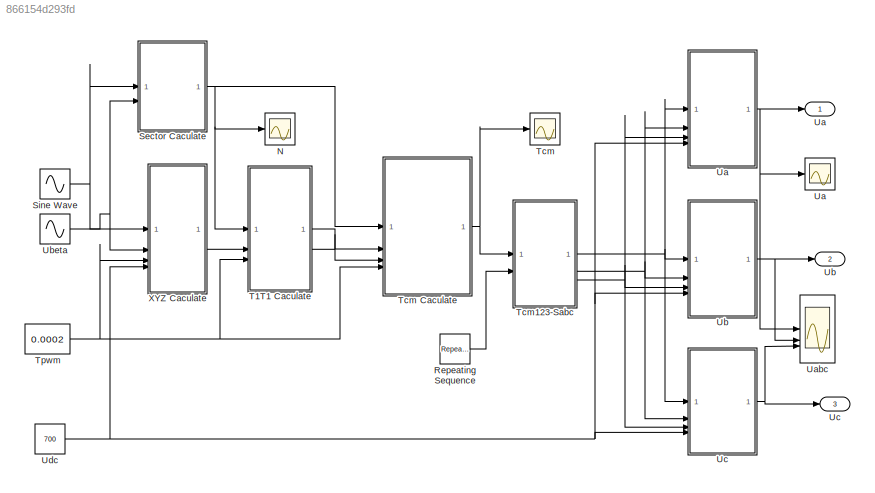
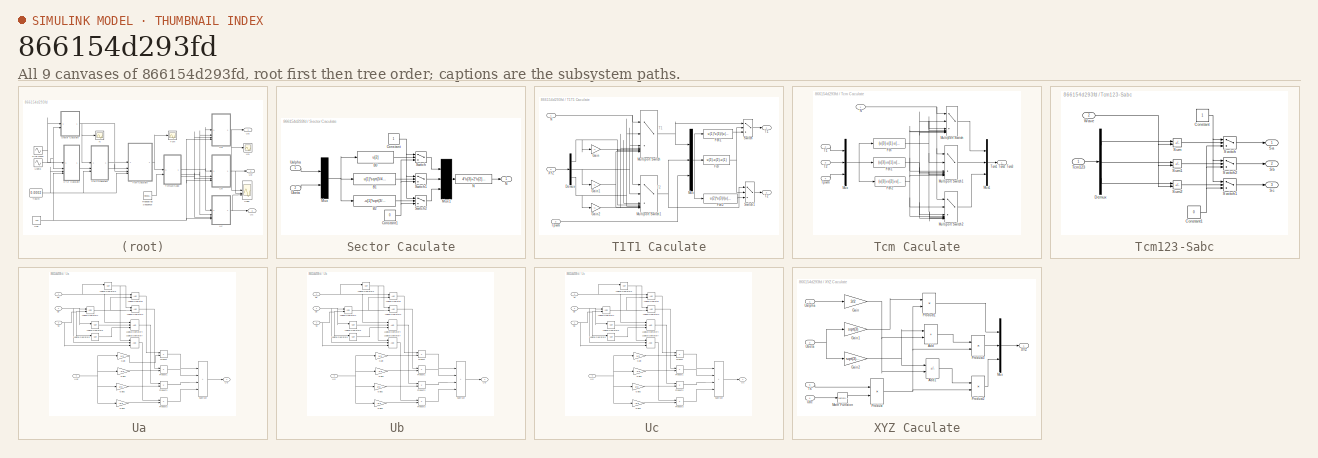
[diagram: thumbnail index - all 9 canvases of the model, root first then tree order]
MODEL slx_866154d293fd
KIND model
CONFIG AbsTol = auto
CONFIG EnableMultiTasking = on
CONFIG FixedStep = 10e-6
CONFIG MaxStep = 0.00001
CONFIG MinStep = auto
CONFIG RelTol = 1e-3
CONFIG SampleTimeConstraint = Unconstrained
CONFIG SolverName = ode23tb
CONFIG StartTime = 0.0
CONFIG StopTime = 0.05
BLOCK [Scope] N
  Floating = off
  NumInputPorts = 1
  ScopeSpecificationString = C++SS(StrPVP('Location','[68, 195, 986, 649]'),StrPVP('Open','off'),MxPVP('AxesTitles',54,'struct(''axes1'',''%<SignalLabel>'')'),MxPVP('ScopeGraphics',57,'struct(''FigureColor'',''[0.501960784313725 0.501960784313725 0.501960784313725]'',''AxesColor'',''[0 0 0]'',''AxesTickColor'',''[1 1 1]'',''LineColors'',''[1 1 0;1 0 1;0 1 1;1 0 0;0 1 0;0 0 1]'',''LineStyles'',''-|-|-|-|-|-'',''LineWidths'',''...<+404ch>
BLOCK [Reference] Repeating Sequence  REF=simulink/Sources/Repeating
Sequence
  SourceBlock = simulink/Sources/Repeating\nSequence
  SourceType = Repeating table
BLOCK [SubSystem] Sector Caculate
BLOCK [Fcn] Sector Caculate/B0
  Expr = u[2]
BLOCK [Fcn] Sector Caculate/B1
  Expr = u[1]*sqrt(3/4)-0.5*u[2]
BLOCK [Fcn] Sector Caculate/B2
  Expr = -u[1]*sqrt(3/4)-u[2]*0.5
BLOCK [Constant] Sector Caculate/Constant
BLOCK [Constant] Sector Caculate/Constant1
  Value = 0
BLOCK [Mux] Sector Caculate/Mux
  Inputs = 2
BLOCK [Mux] Sector Caculate/Mux1
  Inputs = 3
BLOCK [Fcn] Sector Caculate/N
  Expr = 4*u[3]+2*u[2]+u[1]
BLOCK [Outport] Sector Caculate/N 
BLOCK [Switch] Sector Caculate/Switch
  InputSameDT = off
  SaturateOnIntegerOverflow = off
BLOCK [Switch] Sector Caculate/Switch1
  InputSameDT = off
  SaturateOnIntegerOverflow = off
BLOCK [Switch] Sector Caculate/Switch2
  InputSameDT = off
  SaturateOnIntegerOverflow = off
BLOCK [Inport] Sector Caculate/Ualpha
BLOCK [Inport] Sector Caculate/Ubeta
  Port = 2
BLOCK [Sin] Sine Wave
  Amplitude = 200
  Frequency = 100*pi
  Phase = pi/2
  SampleTime = 0
BLOCK [SubSystem] T1T1 Caculate
BLOCK [Demux] T1T1 Caculate/Demux
  Outputs = 3
BLOCK [Fcn] T1T1 Caculate/Fcn
  Expr = u(3)-u(2)-u(1)
BLOCK [Fcn] T1T1 Caculate/Fcn1
  Expr = u(1)*u(3)/(u(1)+u(2))
BLOCK [Fcn] T1T1 Caculate/Fcn2
  Expr = u(2)*u(3)/(u(1)+u(2))
BLOCK [Gain] T1T1 Caculate/Gain
  Gain = -1
BLOCK [Gain] T1T1 Caculate/Gain1
  Gain = -1
BLOCK [Gain] T1T1 Caculate/Gain2
  Gain = -1
BLOCK [MultiPortSwitch] T1T1 Caculate/Multiport Switch
  InputSameDT = off
  Inputs = 6
  SaturateOnIntegerOverflow = off
BLOCK [MultiPortSwitch] T1T1 Caculate/Multiport Switch1
  InputSameDT = off
  Inputs = 6
  SaturateOnIntegerOverflow = off
BLOCK [Mux] T1T1 Caculate/Mux
  DisplayOption = bar
  Inputs = 3
BLOCK [Inport] T1T1 Caculate/N
BLOCK [Switch] T1T1 Caculate/Switch
  InputSameDT = off
  SaturateOnIntegerOverflow = off
BLOCK [Switch] T1T1 Caculate/Switch1
  Criteria = u2 > Threshold
  InputSameDT = off
  SaturateOnIntegerOverflow = off
BLOCK [Outport] T1T1 Caculate/T1
BLOCK [Outport] T1T1 Caculate/T2
  Port = 2
BLOCK [Inport] T1T1 Caculate/Tpwm
  Port = 3
BLOCK [Inport] T1T1 Caculate/XYZ
  Port = 2
BLOCK [Scope] Tcm
  Floating = off
  NumInputPorts = 1
  ScopeSpecificationString = Simulink.scopes.TimeScopeBlockCfg('CurrentConfiguration', extmgr.ConfigurationSet(extmgr.Configuration('Core','General UI',true),extmgr.Configuration('Core','Source UI',true),extmgr.Configuration('Sources','WiredSimulink',true,'DataLogging',true,'DataLoggingVariableName','Tcm','DataLoggingSaveFormat','StructureWithTime','SampleTime','0','DataLoggingDecimation','1','DataLoggingDecimateData',true),e...<+1630ch>
BLOCK [SubSystem] Tcm Caculate
BLOCK [Fcn] Tcm Caculate/Fcn
  Expr = (u[3]-u[1]-u[2])/4
BLOCK [Fcn] Tcm Caculate/Fcn1
  Expr = (u[3]+u[1]-u[2])/4
BLOCK [Fcn] Tcm Caculate/Fcn2
  Expr = (u[3]+u[2]+u[1])/4
BLOCK [MultiPortSwitch] Tcm Caculate/Multiport Switch
  InputSameDT = off
  Inputs = 6
  SaturateOnIntegerOverflow = off
BLOCK [MultiPortSwitch] Tcm Caculate/Multiport Switch1
  InputSameDT = off
  Inputs = 6
  SaturateOnIntegerOverflow = off
BLOCK [MultiPortSwitch] Tcm Caculate/Multiport Switch2
  InputSameDT = off
  Inputs = 6
  SaturateOnIntegerOverflow = off
BLOCK [Mux] Tcm Caculate/Mux
  DisplayOption = bar
  Inputs = 3
BLOCK [Mux] Tcm Caculate/Mux1
  DisplayOption = bar
  Inputs = 3
BLOCK [Inport] Tcm Caculate/N
BLOCK [Inport] Tcm Caculate/T1
  Port = 2
BLOCK [Inport] Tcm Caculate/T2
  Port = 3
BLOCK [Outport] Tcm Caculate/Tcm1 Tcm2 Tcm3
BLOCK [Inport] Tcm Caculate/Tpwm
  Port = 4
BLOCK [SubSystem] Tcm123-Sabc
BLOCK [Constant] Tcm123-Sabc/Constant
BLOCK [Constant] Tcm123-Sabc/Constant1
  Value = 0
BLOCK [Demux] Tcm123-Sabc/Demux
  Outputs = 3
BLOCK [Outport] Tcm123-Sabc/Sa
BLOCK [Outport] Tcm123-Sabc/Sb
  Port = 2
BLOCK [Outport] Tcm123-Sabc/Sc
  Port = 3
BLOCK [Sum] Tcm123-Sabc/Sum
  IconShape = rectangular
  Inputs = -+
  SaturateOnIntegerOverflow = on
BLOCK [Sum] Tcm123-Sabc/Sum1
  IconShape = rectangular
  Inputs = -+
  SaturateOnIntegerOverflow = on
BLOCK [Sum] Tcm123-Sabc/Sum2
  IconShape = rectangular
  Inputs = -+
  SaturateOnIntegerOverflow = on
BLOCK [Switch] Tcm123-Sabc/Switch
  InputSameDT = off
BLOCK [Switch] Tcm123-Sabc/Switch1
  InputSameDT = off
BLOCK [Switch] Tcm123-Sabc/Switch2
  InputSameDT = off
BLOCK [Inport] Tcm123-Sabc/Tcm123
BLOCK [Inport] Tcm123-Sabc/Wave
  Port = 2
BLOCK [Constant] Tpwm
  Value = 0.0002
BLOCK [Outport] Ua
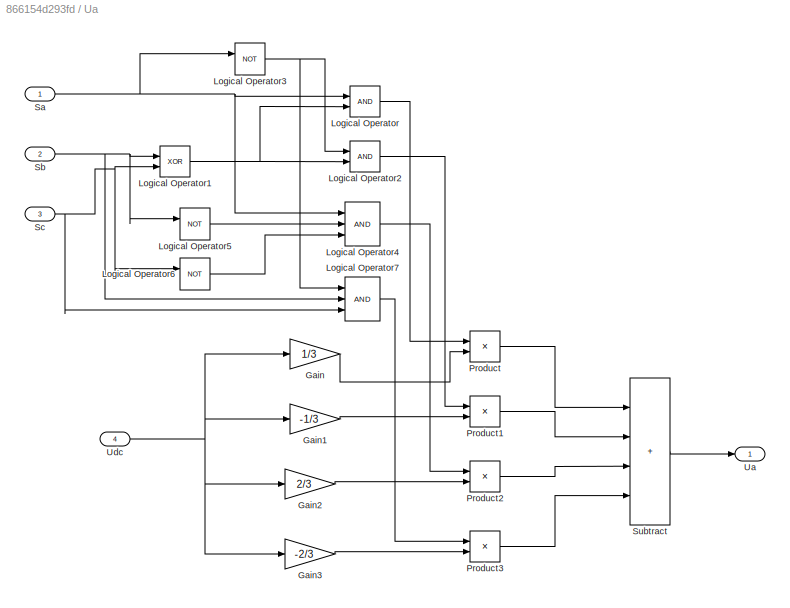
BLOCK [SubSystem] Ua 
BLOCK [Scope] Ua  
  Floating = off
  NumInputPorts = 1
  ScopeSpecificationString = C++SS(StrPVP('Location','[11, 60, 1035, 731]'),StrPVP('Open','off'),MxPVP('AxesTitles',54,'struct(''axes1'',''%<SignalLabel>'')'),MxPVP('ScopeGraphics',57,'struct(''FigureColor'',''[0.5 0.5 0.5]'',''AxesColor'',''[0 0 0]'',''AxesTickColor'',''[1 1 1]'',''LineColors'',''[1 1 0;1 0 1;0 1 1;1 0 0;0 1 0;0 0 1]'',''LineStyles'',''-|-|-|-|-|-'',''LineWidths'',''[0.5 0.5 0.5 0.5 0.5 0.5]'',''MarkerStyles...<+363ch>
BLOCK [Gain] Ua /Gain
  Gain = 1/3
BLOCK [Gain] Ua /Gain1
  Gain = -1/3
BLOCK [Gain] Ua /Gain2
  Gain = 2/3
BLOCK [Gain] Ua /Gain3
  Gain = -2/3
BLOCK [Logic] Ua /Logical Operator
  AllPortsSameDT = off
  OutDataTypeStr = boolean
BLOCK [Logic] Ua /Logical Operator1
  AllPortsSameDT = off
  Operator = XOR
  OutDataTypeStr = boolean
BLOCK [Logic] Ua /Logical Operator2
  AllPortsSameDT = off
  OutDataTypeStr = boolean
BLOCK [Logic] Ua /Logical Operator3
  AllPortsSameDT = off
  Operator = NOT
  OutDataTypeStr = boolean
BLOCK [Logic] Ua /Logical Operator4
  AllPortsSameDT = off
  Inputs = 3
  OutDataTypeStr = boolean
BLOCK [Logic] Ua /Logical Operator5
  AllPortsSameDT = off
  Operator = NOT
  OutDataTypeStr = boolean
BLOCK [Logic] Ua /Logical Operator6
  AllPortsSameDT = off
  Operator = NOT
  OutDataTypeStr = boolean
BLOCK [Logic] Ua /Logical Operator7
  AllPortsSameDT = off
  Inputs = 3
  OutDataTypeStr = boolean
BLOCK [Product] Ua /Product
  RndMeth = Zero
BLOCK [Product] Ua /Product1
  RndMeth = Zero
BLOCK [Product] Ua /Product2
  RndMeth = Zero
BLOCK [Product] Ua /Product3
  RndMeth = Zero
BLOCK [Inport] Ua /Sa
BLOCK [Inport] Ua /Sb
  Port = 2
BLOCK [Inport] Ua /Sc
  Port = 3
BLOCK [Sum] Ua /Subtract
  IconShape = rectangular
  Inputs = ++++
BLOCK [Outport] Ua /Ua
BLOCK [Inport] Ua /Udc
  Port = 4
BLOCK [Scope] Uabc
  Floating = off
  NumInputPorts = 3
  ScopeSpecificationString = Simulink.scopes.TimeScopeBlockCfg('CurrentConfiguration', extmgr.ConfigurationSet(extmgr.Configuration('Core','General UI',true),extmgr.Configuration('Core','Source UI',true),extmgr.Configuration('Sources','WiredSimulink',true,'DataLoggingVariableName','ScopeData7','DataLoggingSaveFormat','Structure','DataLoggingDecimation','1','DataLoggingDecimateData',true),extmgr.Configuration('Visuals','Time D...<+3243ch>
BLOCK [Outport] Ub
  Port = 2
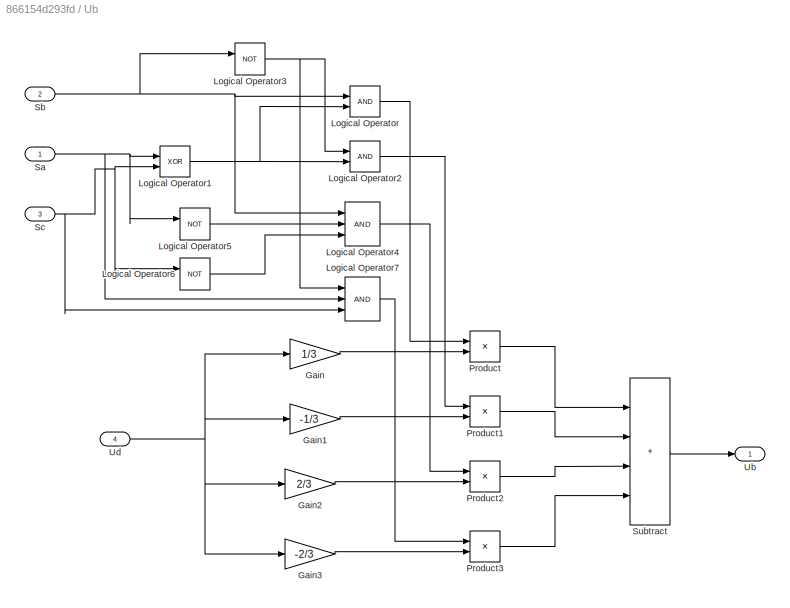
BLOCK [SubSystem] Ub 
BLOCK [Gain] Ub /Gain
  Gain = 1/3
BLOCK [Gain] Ub /Gain1
  Gain = -1/3
BLOCK [Gain] Ub /Gain2
  Gain = 2/3
BLOCK [Gain] Ub /Gain3
  Gain = -2/3
BLOCK [Logic] Ub /Logical Operator
  AllPortsSameDT = off
  OutDataTypeStr = boolean
BLOCK [Logic] Ub /Logical Operator1
  AllPortsSameDT = off
  Operator = XOR
  OutDataTypeStr = boolean
BLOCK [Logic] Ub /Logical Operator2
  AllPortsSameDT = off
  OutDataTypeStr = boolean
BLOCK [Logic] Ub /Logical Operator3
  AllPortsSameDT = off
  Operator = NOT
  OutDataTypeStr = boolean
BLOCK [Logic] Ub /Logical Operator4
  AllPortsSameDT = off
  Inputs = 3
  OutDataTypeStr = boolean
BLOCK [Logic] Ub /Logical Operator5
  AllPortsSameDT = off
  Operator = NOT
  OutDataTypeStr = boolean
BLOCK [Logic] Ub /Logical Operator6
  AllPortsSameDT = off
  Operator = NOT
  OutDataTypeStr = boolean
BLOCK [Logic] Ub /Logical Operator7
  AllPortsSameDT = off
  Inputs = 3
  OutDataTypeStr = boolean
BLOCK [Product] Ub /Product
  RndMeth = Zero
BLOCK [Product] Ub /Product1
  RndMeth = Zero
BLOCK [Product] Ub /Product2
  RndMeth = Zero
BLOCK [Product] Ub /Product3
  RndMeth = Zero
BLOCK [Inport] Ub /Sa
BLOCK [Inport] Ub /Sb
  Port = 2
BLOCK [Inport] Ub /Sc
  Port = 3
BLOCK [Sum] Ub /Subtract
  IconShape = rectangular
  Inputs = ++++
BLOCK [Outport] Ub /Ub
BLOCK [Inport] Ub /Ud
  Port = 4
BLOCK [Sin] Ubeta
  Amplitude = 200
  Frequency = 100*pi
  SampleTime = 0
BLOCK [Outport] Uc
  Port = 3
BLOCK [SubSystem] Uc  
BLOCK [Gain] Uc  /Gain
  Gain = 1/3
BLOCK [Gain] Uc  /Gain1
  Gain = -1/3
BLOCK [Gain] Uc  /Gain2
  Gain = 2/3
BLOCK [Gain] Uc  /Gain3
  Gain = -2/3
BLOCK [Logic] Uc  /Logical Operator
  AllPortsSameDT = off
  OutDataTypeStr = boolean
BLOCK [Logic] Uc  /Logical Operator1
  AllPortsSameDT = off
  Operator = XOR
  OutDataTypeStr = boolean
BLOCK [Logic] Uc  /Logical Operator2
  AllPortsSameDT = off
  OutDataTypeStr = boolean
BLOCK [Logic] Uc  /Logical Operator3
  AllPortsSameDT = off
  Operator = NOT
  OutDataTypeStr = boolean
BLOCK [Logic] Uc  /Logical Operator4
  AllPortsSameDT = off
  Inputs = 3
  OutDataTypeStr = boolean
BLOCK [Logic] Uc  /Logical Operator5
  AllPortsSameDT = off
  Operator = NOT
  OutDataTypeStr = boolean
BLOCK [Logic] Uc  /Logical Operator6
  AllPortsSameDT = off
  Operator = NOT
  OutDataTypeStr = boolean
BLOCK [Logic] Uc  /Logical Operator7
  AllPortsSameDT = off
  Inputs = 3
  OutDataTypeStr = boolean
BLOCK [Product] Uc  /Product
  RndMeth = Zero
BLOCK [Product] Uc  /Product1
  RndMeth = Zero
BLOCK [Product] Uc  /Product2
  RndMeth = Zero
BLOCK [Product] Uc  /Product3
  RndMeth = Zero
BLOCK [Inport] Uc  /Sa 
BLOCK [Inport] Uc  /Sb
  Port = 2
BLOCK [Inport] Uc  /Sc
  Port = 3
BLOCK [Sum] Uc  /Subtract
  IconShape = rectangular
  Inputs = ++++
BLOCK [Outport] Uc  /Uc
BLOCK [Inport] Uc  /Ud
  Port = 4
BLOCK [Constant] Udc
  Value = 700
BLOCK [SubSystem] XYZ Caculate
BLOCK [Sum] XYZ Caculate/Add
  IconShape = rectangular
BLOCK [Sum] XYZ Caculate/Add1
  IconShape = rectangular
  Inputs = +-
BLOCK [Gain] XYZ Caculate/Gain
  Gain = 3/2
BLOCK [Gain] XYZ Caculate/Gain1
  Gain = sqrt(3)
BLOCK [Gain] XYZ Caculate/Gain2
  Gain = sqrt(3)/2
BLOCK [Math] XYZ Caculate/Math Function
  Operator = reciprocal
  SignedPower = on
BLOCK [Mux] XYZ Caculate/Mux
  DisplayOption = bar
  Inputs = 3
BLOCK [Product] XYZ Caculate/Product
  RndMeth = Zero
BLOCK [Product] XYZ Caculate/Product1
  RndMeth = Zero
BLOCK [Product] XYZ Caculate/Product2
  RndMeth = Zero
BLOCK [Product] XYZ Caculate/Product3
  RndMeth = Zero
BLOCK [Inport] XYZ Caculate/Ts
  Port = 3
BLOCK [Inport] XYZ Caculate/Ualpha
BLOCK [Inport] XYZ Caculate/Ubeta
  Port = 2
BLOCK [Inport] XYZ Caculate/Udc
  Port = 4
BLOCK [Outport] XYZ Caculate/XYZ
ANNOTATION T1T1 Caculate: T1
ANNOTATION T1T1 Caculate: T2
LINE Repeating Sequence:1 -> Tcm123-Sabc:2
LINE Sector Caculate/B0:1 -> Sector Caculate/Switch:2
LINE Sector Caculate/B1:1 -> Sector Caculate/Switch1:2
LINE Sector Caculate/B2:1 -> Sector Caculate/Switch2:2
NET Sector Caculate/Constant1:1 -> Sector Caculate/Switch1:3, Sector Caculate/Switch2:3, Sector Caculate/Switch:3
NET Sector Caculate/Constant:1 -> Sector Caculate/Switch1:1, Sector Caculate/Switch2:1, Sector Caculate/Switch:1
LINE Sector Caculate/Mux1:1 -> Sector Caculate/N:1
NET Sector Caculate/Mux:1 -> Sector Caculate/B0:1, Sector Caculate/B1:1, Sector Caculate/B2:1
LINE Sector Caculate/N:1 -> Sector Caculate/N :1
LINE Sector Caculate/Switch1:1 -> Sector Caculate/Mux1:2
LINE Sector Caculate/Switch2:1 -> Sector Caculate/Mux1:3
LINE Sector Caculate/Switch:1 -> Sector Caculate/Mux1:1
LINE Sector Caculate/Ualpha:1 -> Sector Caculate/Mux:1
LINE Sector Caculate/Ubeta:1 -> Sector Caculate/Mux:2
NET Sector Caculate:1 -> N:1, T1T1 Caculate:1, Tcm Caculate:1
NET Sine Wave:1 -> Sector Caculate:1, XYZ Caculate:1
NET T1T1 Caculate/Demux:1 -> T1T1 Caculate/Gain:1, T1T1 Caculate/Multiport Switch1:4, T1T1 Caculate/Multiport Switch:6
NET T1T1 Caculate/Demux:2 -> T1T1 Caculate/Gain1:1, T1T1 Caculate/Multiport Switch1:2, T1T1 Caculate/Multiport Switch:3
NET T1T1 Caculate/Demux:3 -> T1T1 Caculate/Gain2:1, T1T1 Caculate/Multiport Switch1:5, T1T1 Caculate/Multiport Switch:2
LINE T1T1 Caculate/Fcn1:1 -> T1T1 Caculate/Switch:3
LINE T1T1 Caculate/Fcn2:1 -> T1T1 Caculate/Switch1:3
NET T1T1 Caculate/Fcn:1 -> T1T1 Caculate/Switch1:2, T1T1 Caculate/Switch:2
NET T1T1 Caculate/Gain1:1 -> T1T1 Caculate/Multiport Switch1:6, T1T1 Caculate/Multiport Switch:7
NET T1T1 Caculate/Gain2:1 -> T1T1 Caculate/Multiport Switch1:7, T1T1 Caculate/Multiport Switch:4
NET T1T1 Caculate/Gain:1 -> T1T1 Caculate/Multiport Switch1:3, T1T1 Caculate/Multiport Switch:5
NET T1T1 Caculate/Multiport Switch1:1 -> T1T1 Caculate/Mux:2, T1T1 Caculate/Switch1:1
NET T1T1 Caculate/Multiport Switch:1 -> T1T1 Caculate/Mux:1, T1T1 Caculate/Switch:1
NET T1T1 Caculate/Mux:1 -> T1T1 Caculate/Fcn1:1, T1T1 Caculate/Fcn2:1, T1T1 Caculate/Fcn:1
NET T1T1 Caculate/N:1 -> T1T1 Caculate/Multiport Switch1:1, T1T1 Caculate/Multiport Switch:1
LINE T1T1 Caculate/Switch1:1 -> T1T1 Caculate/T2:1
LINE T1T1 Caculate/Switch:1 -> T1T1 Caculate/T1:1
LINE T1T1 Caculate/Tpwm:1 -> T1T1 Caculate/Mux:3
LINE T1T1 Caculate/XYZ:1 -> T1T1 Caculate/Demux:1
LINE T1T1 Caculate:1 -> Tcm Caculate:2
LINE T1T1 Caculate:2 -> Tcm Caculate:3
NET Tcm Caculate/Fcn1:1 -> Tcm Caculate/Multiport Switch1:4, Tcm Caculate/Multiport Switch1:5, Tcm Caculate/Multiport Switch2:3, Tcm Caculate/Multiport Switch2:6, Tcm Caculate/Multiport Switch:2, Tcm Caculate/Multiport Switch:7
NET Tcm Caculate/Fcn2:1 -> Tcm Caculate/Multiport Switch1:3, Tcm Caculate/Multiport Switch1:7, Tcm Caculate/Multiport Switch2:2, Tcm Caculate/Multiport Switch2:4, Tcm Caculate/Multiport Switch:5, Tcm Caculate/Multiport Switch:6
NET Tcm Caculate/Fcn:1 -> Tcm Caculate/Multiport Switch1:2, Tcm Caculate/Multiport Switch1:6, Tcm Caculate/Multiport Switch2:5, Tcm Caculate/Multiport Switch2:7, Tcm Caculate/Multiport Switch:3, Tcm Caculate/Multiport Switch:4
LINE Tcm Caculate/Multiport Switch1:1 -> Tcm Caculate/Mux1:2
LINE Tcm Caculate/Multiport Switch2:1 -> Tcm Caculate/Mux1:3
LINE Tcm Caculate/Multiport Switch:1 -> Tcm Caculate/Mux1:1
LINE Tcm Caculate/Mux1:1 -> Tcm Caculate/Tcm1 Tcm2 Tcm3:1
NET Tcm Caculate/Mux:1 -> Tcm Caculate/Fcn1:1, Tcm Caculate/Fcn2:1, Tcm Caculate/Fcn:1
NET Tcm Caculate/N:1 -> Tcm Caculate/Multiport Switch1:1, Tcm Caculate/Multiport Switch2:1, Tcm Caculate/Multiport Switch:1
LINE Tcm Caculate/T1:1 -> Tcm Caculate/Mux:1
LINE Tcm Caculate/T2:1 -> Tcm Caculate/Mux:2
LINE Tcm Caculate/Tpwm:1 -> Tcm Caculate/Mux:3
NET Tcm Caculate:1 -> Tcm123-Sabc:1, Tcm:1
NET Tcm123-Sabc/Constant1:1 -> Tcm123-Sabc/Switch1:3, Tcm123-Sabc/Switch2:3, Tcm123-Sabc/Switch:3
NET Tcm123-Sabc/Constant:1 -> Tcm123-Sabc/Switch1:1, Tcm123-Sabc/Switch2:1, Tcm123-Sabc/Switch:1
LINE Tcm123-Sabc/Demux:1 -> Tcm123-Sabc/Sum:1
LINE Tcm123-Sabc/Demux:2 -> Tcm123-Sabc/Sum1:1
LINE Tcm123-Sabc/Demux:3 -> Tcm123-Sabc/Sum2:1
LINE Tcm123-Sabc/Sum1:1 -> Tcm123-Sabc/Switch2:2
LINE Tcm123-Sabc/Sum2:1 -> Tcm123-Sabc/Switch1:2
LINE Tcm123-Sabc/Sum:1 -> Tcm123-Sabc/Switch:2
LINE Tcm123-Sabc/Switch1:1 -> Tcm123-Sabc/Sc:1
LINE Tcm123-Sabc/Switch2:1 -> Tcm123-Sabc/Sb:1
LINE Tcm123-Sabc/Switch:1 -> Tcm123-Sabc/Sa:1
LINE Tcm123-Sabc/Tcm123:1 -> Tcm123-Sabc/Demux:1
NET Tcm123-Sabc/Wave:1 -> Tcm123-Sabc/Sum1:2, Tcm123-Sabc/Sum2:2, Tcm123-Sabc/Sum:2
NET Tcm123-Sabc:1 -> Ua :1, Ub :1, Uc  :1
NET Tcm123-Sabc:2 -> Ua :2, Ub :2, Uc  :2
NET Tcm123-Sabc:3 -> Ua :3, Ub :3, Uc  :3
NET Tpwm:1 -> T1T1 Caculate:3, Tcm Caculate:4, XYZ Caculate:3
LINE Ua /Gain1:1 -> Ua /Product1:2
LINE Ua /Gain2:1 -> Ua /Product2:2
LINE Ua /Gain3:1 -> Ua /Product3:2
LINE Ua /Gain:1 -> Ua /Product:2
NET Ua /Logical Operator1:1 -> Ua /Logical Operator2:2, Ua /Logical Operator:2
LINE Ua /Logical Operator2:1 -> Ua /Product1:1
NET Ua /Logical Operator3:1 -> Ua /Logical Operator2:1, Ua /Logical Operator7:1
LINE Ua /Logical Operator4:1 -> Ua /Product2:1
LINE Ua /Logical Operator5:1 -> Ua /Logical Operator4:2
LINE Ua /Logical Operator6:1 -> Ua /Logical Operator4:3
LINE Ua /Logical Operator7:1 -> Ua /Product3:1
LINE Ua /Logical Operator:1 -> Ua /Product:1
LINE Ua /Product1:1 -> Ua /Subtract:2
LINE Ua /Product2:1 -> Ua /Subtract:3
LINE Ua /Product3:1 -> Ua /Subtract:4
LINE Ua /Product:1 -> Ua /Subtract:1
NET Ua /Sa:1 -> Ua /Logical Operator3:1, Ua /Logical Operator4:1, Ua /Logical Operator:1
NET Ua /Sb:1 -> Ua /Logical Operator1:1, Ua /Logical Operator5:1, Ua /Logical Operator7:2
NET Ua /Sc:1 -> Ua /Logical Operator1:2, Ua /Logical Operator6:1, Ua /Logical Operator7:3
LINE Ua /Subtract:1 -> Ua /Ua:1
NET Ua /Udc:1 -> Ua /Gain1:1, Ua /Gain2:1, Ua /Gain3:1, Ua /Gain:1
NET Ua :1 -> Ua  :1, Ua:1, Uabc:1
LINE Ub /Gain1:1 -> Ub /Product1:2
LINE Ub /Gain2:1 -> Ub /Product2:2
LINE Ub /Gain3:1 -> Ub /Product3:2
LINE Ub /Gain:1 -> Ub /Product:2
NET Ub /Logical Operator1:1 -> Ub /Logical Operator2:2, Ub /Logical Operator:2
LINE Ub /Logical Operator2:1 -> Ub /Product1:1
NET Ub /Logical Operator3:1 -> Ub /Logical Operator2:1, Ub /Logical Operator7:1
LINE Ub /Logical Operator4:1 -> Ub /Product2:1
LINE Ub /Logical Operator5:1 -> Ub /Logical Operator4:2
LINE Ub /Logical Operator6:1 -> Ub /Logical Operator4:3
LINE Ub /Logical Operator7:1 -> Ub /Product3:1
LINE Ub /Logical Operator:1 -> Ub /Product:1
LINE Ub /Product1:1 -> Ub /Subtract:2
LINE Ub /Product2:1 -> Ub /Subtract:3
LINE Ub /Product3:1 -> Ub /Subtract:4
LINE Ub /Product:1 -> Ub /Subtract:1
NET Ub /Sa:1 -> Ub /Logical Operator1:1, Ub /Logical Operator5:1, Ub /Logical Operator7:2
NET Ub /Sb:1 -> Ub /Logical Operator3:1, Ub /Logical Operator4:1, Ub /Logical Operator:1
NET Ub /Sc:1 -> Ub /Logical Operator1:2, Ub /Logical Operator6:1, Ub /Logical Operator7:3
LINE Ub /Subtract:1 -> Ub /Ub:1
NET Ub /Ud:1 -> Ub /Gain1:1, Ub /Gain2:1, Ub /Gain3:1, Ub /Gain:1
NET Ub :1 -> Uabc:2, Ub:1
NET Ubeta:1 -> Sector Caculate:2, XYZ Caculate:2
LINE Uc  /Gain1:1 -> Uc  /Product1:2
LINE Uc  /Gain2:1 -> Uc  /Product2:2
LINE Uc  /Gain3:1 -> Uc  /Product3:2
LINE Uc  /Gain:1 -> Uc  /Product:2
NET Uc  /Logical Operator1:1 -> Uc  /Logical Operator2:2, Uc  /Logical Operator:2
LINE Uc  /Logical Operator2:1 -> Uc  /Product1:1
NET Uc  /Logical Operator3:1 -> Uc  /Logical Operator2:1, Uc  /Logical Operator7:1
LINE Uc  /Logical Operator4:1 -> Uc  /Product2:1
LINE Uc  /Logical Operator5:1 -> Uc  /Logical Operator4:2
LINE Uc  /Logical Operator6:1 -> Uc  /Logical Operator4:3
LINE Uc  /Logical Operator7:1 -> Uc  /Product3:1
LINE Uc  /Logical Operator:1 -> Uc  /Product:1
LINE Uc  /Product1:1 -> Uc  /Subtract:2
LINE Uc  /Product2:1 -> Uc  /Subtract:3
LINE Uc  /Product3:1 -> Uc  /Subtract:4
LINE Uc  /Product:1 -> Uc  /Subtract:1
NET Uc  /Sa :1 -> Uc  /Logical Operator1:2, Uc  /Logical Operator6:1, Uc  /Logical Operator7:3
NET Uc  /Sb:1 -> Uc  /Logical Operator1:1, Uc  /Logical Operator5:1, Uc  /Logical Operator7:2
NET Uc  /Sc:1 -> Uc  /Logical Operator3:1, Uc  /Logical Operator4:1, Uc  /Logical Operator:1
LINE Uc  /Subtract:1 -> Uc  /Uc:1
NET Uc  /Ud:1 -> Uc  /Gain1:1, Uc  /Gain2:1, Uc  /Gain3:1, Uc  /Gain:1
NET Uc  :1 -> Uabc:3, Uc:1
NET Udc:1 -> Ua :4, Ub :4, Uc  :4, XYZ Caculate:4
LINE XYZ Caculate/Add1:1 -> XYZ Caculate/Product2:1
LINE XYZ Caculate/Add:1 -> XYZ Caculate/Product3:1
LINE XYZ Caculate/Gain1:1 -> XYZ Caculate/Product1:1
NET XYZ Caculate/Gain2:1 -> XYZ Caculate/Add1:1, XYZ Caculate/Add:1
NET XYZ Caculate/Gain:1 -> XYZ Caculate/Add1:2, XYZ Caculate/Add:2
LINE XYZ Caculate/Math Function:1 -> XYZ Caculate/Product:2
LINE XYZ Caculate/Mux:1 -> XYZ Caculate/XYZ:1
LINE XYZ Caculate/Product1:1 -> XYZ Caculate/Mux:1
LINE XYZ Caculate/Product2:1 -> XYZ Caculate/Mux:3
LINE XYZ Caculate/Product3:1 -> XYZ Caculate/Mux:2
NET XYZ Caculate/Product:1 -> XYZ Caculate/Product1:2, XYZ Caculate/Product2:2, XYZ Caculate/Product3:2
LINE XYZ Caculate/Ts:1 -> XYZ Caculate/Product:1
LINE XYZ Caculate/Ualpha:1 -> XYZ Caculate/Gain:1
NET XYZ Caculate/Ubeta:1 -> XYZ Caculate/Gain1:1, XYZ Caculate/Gain2:1
LINE XYZ Caculate/Udc:1 -> XYZ Caculate/Math Function:1
LINE XYZ Caculate:1 -> T1T1 Caculate:2
note: NET lines group one-source signal fan-out (src -> all destinations, sorted); 1:1 wires keep LINE
